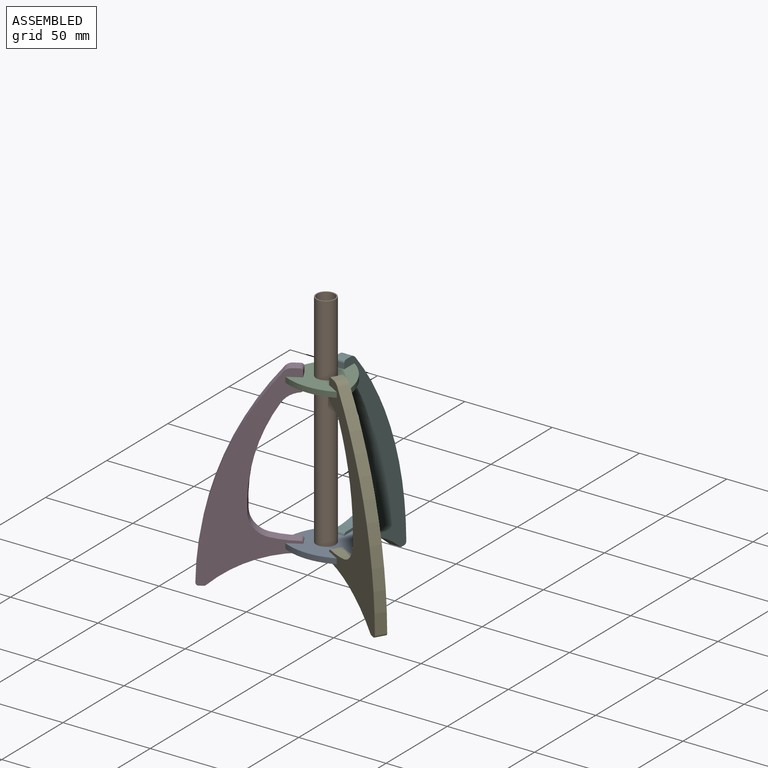
[diagram: assembled view]
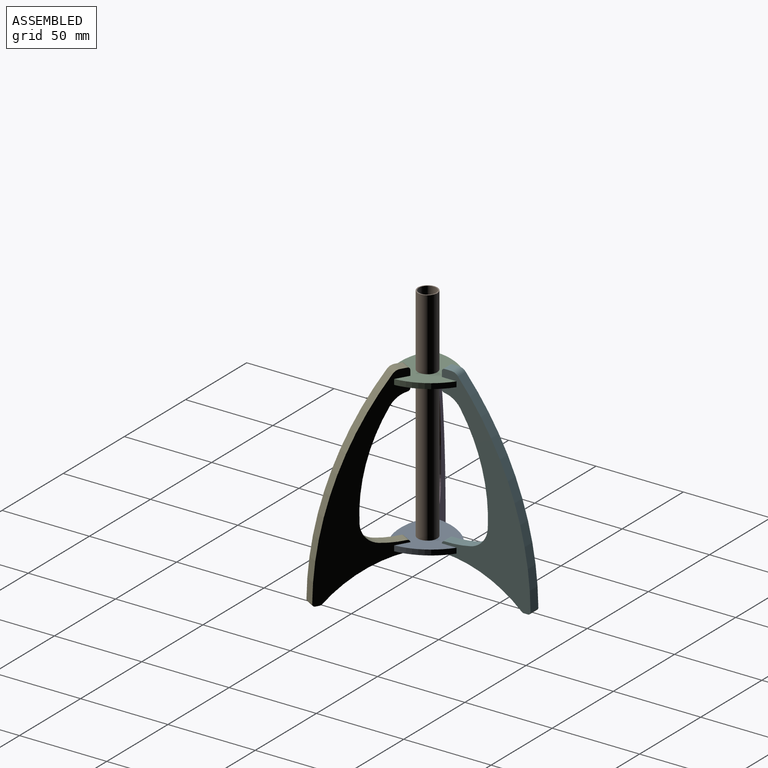
[diagram: assembled view, second angle]
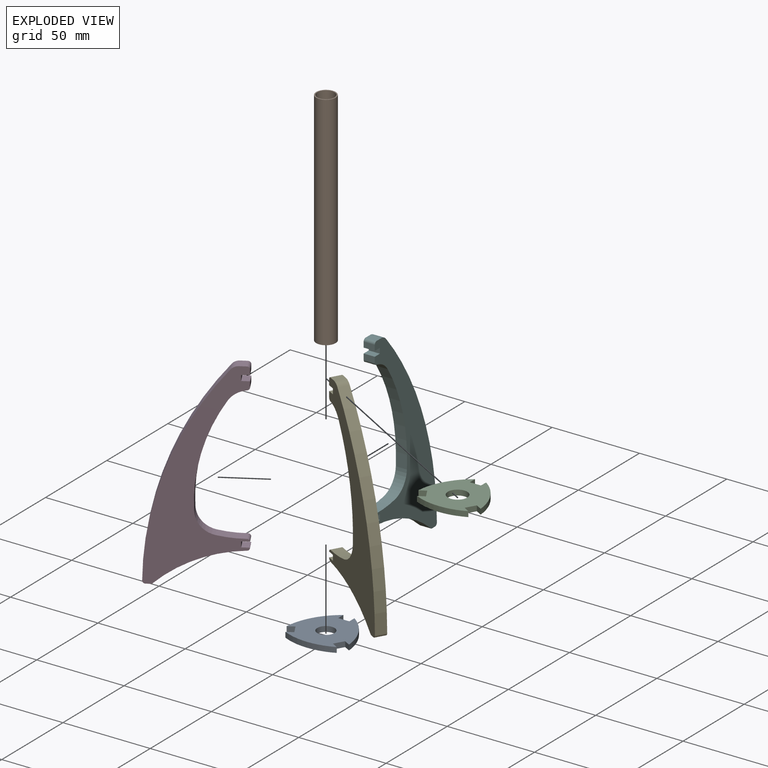
[diagram: exploded view]
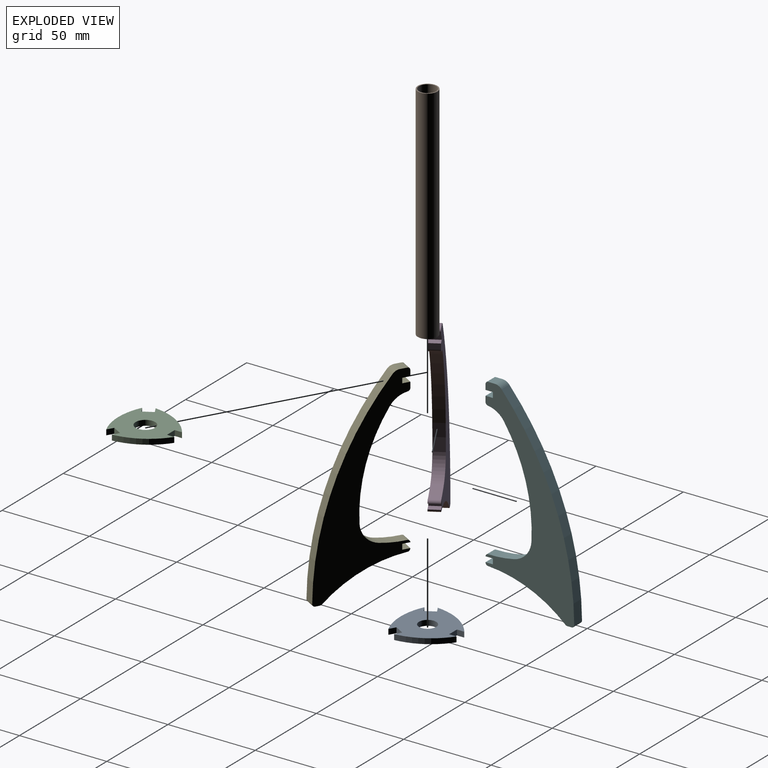
[diagram: exploded view, second angle]
ASSEMBLY  parts=6 mates=5
PART A: 15 faces, bbox 35.7x34.2x3 mm
  f0: plane 5.5x3.18mm, normal (-0.87,-0.5,0), area 19.4mm2, adj f1,f12,f13,f14
  f1: plane 3.63x3.05mm, normal (-0.5,0.87,0), area 12.8mm2, adj f0,f2,f13,f14
  f2: cylinder r=34.47mm len=29.36mm, axis (0,0,-1), area 92.4mm2, adj f1,f3,f13,f14
  f3: plane 3.63x3.05mm, normal (0.5,0.87,0), area 12.8mm2, adj f2,f4,f13,f14
  f4: plane 5.5x3.18mm, normal (0.87,-0.5,0), area 19.4mm2, adj f3,f5,f13,f14
  f5: plane 3.63x3.05mm, normal (-0.5,-0.87,0), area 12.8mm2, adj f4,f6,f13,f14
  f6: cylinder r=34.47mm len=25.43mm, axis (0,0,-1), area 92.4mm2, adj f5,f7,f13,f14
  f7: plane 4.19x3.05mm, normal (-1,0,0), area 12.8mm2, adj f6,f8,f13,f14
  f8: plane 6.35x3.05mm, normal (0,1,0), area 19.4mm2, adj f7,f9,f13,f14
  f9: plane 4.19x3.05mm, normal (1,0,0), area 12.8mm2, adj f8,f10,f13,f14
  f10: cylinder r=34.47mm len=25.43mm, axis (0,0,-1), area 92.4mm2, adj f9,f12,f13,f14
  f11: cylinder r=4.95mm len=9.91mm, axis (0,0,-1), area 94.9mm2, adj f13,f14
  f12: plane 3.63x3.05mm, normal (0.5,-0.87,0), area 12.8mm2, adj f0,f10,f13,f14
  f13: plane 35.71x34.21mm, normal (0,0,1), area 751.3mm2, adj f0,f1,f2,f3,f4,f5,f6,f7
  f14: plane 35.71x34.21mm, normal (0,0,-1), area 751.3mm2, adj f0,f1,f2,f3,f4,f5,f6,f7
PART B: 4 faces, bbox 11.2x11.2x127 mm
  f0: cylinder r=4.95mm len=127mm, axis (0,0,-1), area 3952.3mm2, adj f2,f3
  f1: cylinder r=5.59mm len=127mm, axis (0,0,-1), area 4459mm2, adj f2,f3
  f2: plane 11.18x11.18mm, normal (0,0,1), area 21mm2, adj f0,f1
  f3: plane 11.18x11.18mm, normal (0,0,-1), area 21mm2, adj f0,f1
PART C: 15 faces, bbox 35.7x34.2x3 mm
  f0: plane 5.5x3.18mm, normal (-0.87,-0.5,0), area 19.4mm2, adj f1,f12,f13,f14
  f1: plane 3.63x3.05mm, normal (-0.5,0.87,0), area 12.8mm2, adj f0,f2,f13,f14
  f2: cylinder r=34.47mm len=29.36mm, axis (0,0,-1), area 92.4mm2, adj f1,f3,f13,f14
  f3: plane 3.63x3.05mm, normal (0.5,0.87,0), area 12.8mm2, adj f2,f4,f13,f14
  f4: plane 5.5x3.18mm, normal (0.87,-0.5,0), area 19.4mm2, adj f3,f5,f13,f14
  f5: plane 3.63x3.05mm, normal (-0.5,-0.87,0), area 12.8mm2, adj f4,f6,f13,f14
  f6: cylinder r=34.47mm len=25.43mm, axis (0,0,-1), area 92.4mm2, adj f5,f7,f13,f14
  f7: plane 4.19x3.05mm, normal (-1,0,0), area 12.8mm2, adj f6,f8,f13,f14
  f8: plane 6.35x3.05mm, normal (0,1,0), area 19.4mm2, adj f7,f9,f13,f14
  f9: plane 4.19x3.05mm, normal (1,0,0), area 12.8mm2, adj f8,f10,f13,f14
  f10: cylinder r=34.47mm len=25.43mm, axis (0,0,-1), area 92.4mm2, adj f9,f12,f13,f14
  f11: cylinder r=5.59mm len=11.18mm, axis (0,0,-1), area 107mm2, adj f13,f14
  f12: plane 3.63x3.05mm, normal (0.5,-0.87,0), area 12.8mm2, adj f0,f10,f13,f14
  f13: plane 35.71x34.21mm, normal (0,0,1), area 730.3mm2, adj f0,f1,f2,f3,f4,f5,f6,f7
  f14: plane 35.71x34.21mm, normal (0,0,-1), area 730.3mm2, adj f0,f1,f2,f3,f4,f5,f6,f7
PART D: 27 faces, bbox 50.8x6.4x114.3 mm
  f0: cylinder r=172.87mm len=110.99mm, axis (0,1,0), area 768.3mm2, adj f16,f17,f20,f21
  f1: plane 6.35x2.45mm, normal (0,0,-1), area 15.6mm2, adj f16,f17,f21,f22
  f2: cylinder r=72.28mm len=44.36mm, axis (0,1,0), area 311.3mm2, adj f16,f17,f22,f23
  f3: plane 6.35x0.07mm, normal (1,0,0), area 0.5mm2, adj f4,f16,f17,f23
  f4: plane 6.35x4.19mm, normal (0,0,1), area 26.6mm2, adj f3,f5,f16,f17
  f5: plane 6.35x3.05mm, normal (1,0,0), area 19.4mm2, adj f4,f6,f16,f17
  f6: plane 6.35x4.19mm, normal (0,0,-1), area 26.6mm2, adj f5,f16,f17,f24
  f7: cylinder r=63.83mm len=14.7mm, axis (0,1,0), area 94mm2, adj f16,f17,f18,f24
  f8: cylinder r=96.85mm len=57.98mm, axis (0,1,0), area 387.8mm2, adj f16,f17,f18,f19
  f9: cylinder r=19.83mm len=6.35mm, axis (0,1,0), area 11.3mm2, adj f16,f17,f19,f25
  f10: plane 6.35x3.23mm, normal (1,0,0), area 20.5mm2, adj f11,f16,f17,f25
  f11: plane 6.35x4.19mm, normal (0,0,1), area 26.6mm2, adj f10,f12,f16,f17
  f12: plane 6.35x3.05mm, normal (1,0,0), area 19.4mm2, adj f11,f13,f16,f17
  f13: plane 6.35x4.19mm, normal (0,0,-1), area 26.6mm2, adj f12,f14,f16,f17
  f14: plane 6.35x3.05mm, normal (1,0,0), area 19.4mm2, adj f13,f16,f17,f26
  f15: plane 6.35x3.78mm, normal (0,0,1), area 24mm2, adj f16,f17,f20,f26
  f16: plane 114.3x50.79mm, normal (0,-1,0), area 2036.2mm2, adj f0,f1,f2,f3,f4,f5,f6,f7
  f17: plane 114.3x50.79mm, normal (0,1,0), area 2036.2mm2, adj f0,f1,f2,f3,f4,f5,f6,f7
  f18: cylinder r=12.7mm len=11.78mm, axis (0,-1,0), area 105.7mm2, adj f7,f8,f16,f17
  f19: cylinder r=12.7mm len=7.54mm, axis (0,-1,0), area 60.1mm2, adj f8,f9,f16,f17
  f20: cylinder r=5.08mm len=6.35mm, axis (0,1,0), area 27.8mm2, adj f0,f15,f16,f17
  f21: cylinder r=1.52mm len=6.35mm, axis (0,1,0), area 15.3mm2, adj f0,f1,f16,f17
  f22: cylinder r=1.52mm len=6.35mm, axis (0,1,0), area 7.1mm2, adj f1,f2,f16,f17
  f23: cylinder r=1.52mm len=6.35mm, axis (0,1,0), area 14.6mm2, adj f2,f3,f16,f17
  f24: cylinder r=1.52mm len=6.35mm, axis (0,1,0), area 15.1mm2, adj f6,f7,f16,f17
  f25: cylinder r=1.52mm len=6.35mm, axis (0,1,0), area 13.7mm2, adj f9,f10,f16,f17
  f26: cylinder r=1.52mm len=6.35mm, axis (0,1,0), area 15.2mm2, adj f14,f15,f16,f17
PART E: same geometry as D
PART F: same geometry as D
PLACE A t=(0,-6.35,0)mm
PLACE B t=(0,-6.35,3.05)mm
PLACE C t=(0,-6.35,86.11)mm
PLACE D rot(axis=(0,0,1),30deg) t=(-32.59,-21.5,36.58)mm
PLACE E rot(axis=(0,0,1),150deg) t=(29.42,-27,36.58)mm
PLACE F rot(axis=(0,0,-1),90deg) t=(3.18,29.45,36.58)mm
MATE planar C.f4 <-> E.f12  axis (0.87,-0.5,0) through (12.64,-13.65,87.63)mm
MATE planar E.f5 <-> A.f4  axis (-0.87,0.5,0) through (12.64,-13.65,1.52)mm
MATE planar F.f5 <-> A.f8  axis (0,-1,0) through (0,8.24,1.52)mm
MATE planar B.f1 <-> A.f11  axis (0,0,-1) through (0,-6.35,3.05)mm
MATE planar D.f5 <-> A.f0  axis (0.87,0.5,0) through (-12.64,-13.65,1.52)mm
